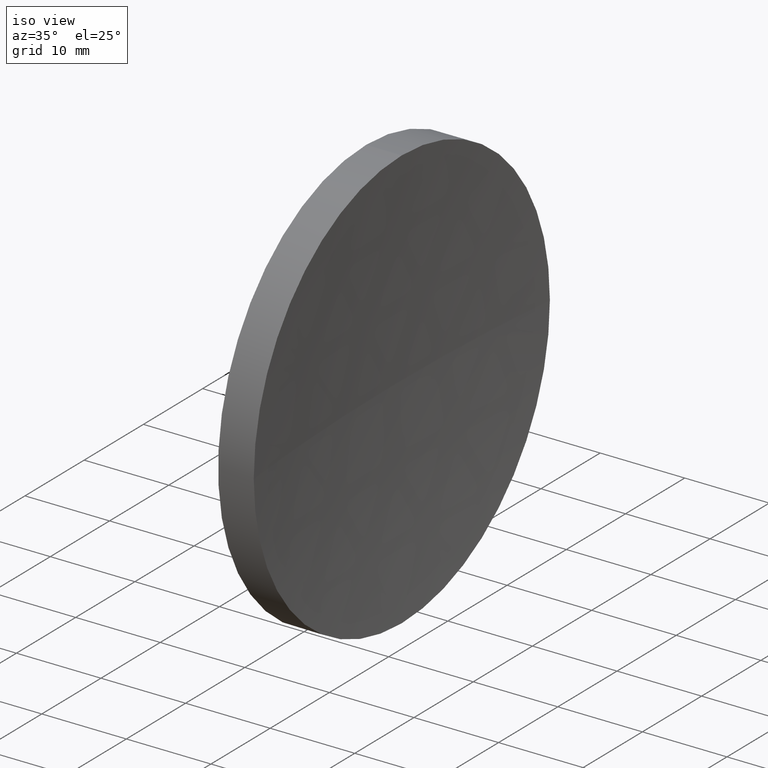
[diagram: clean part render]
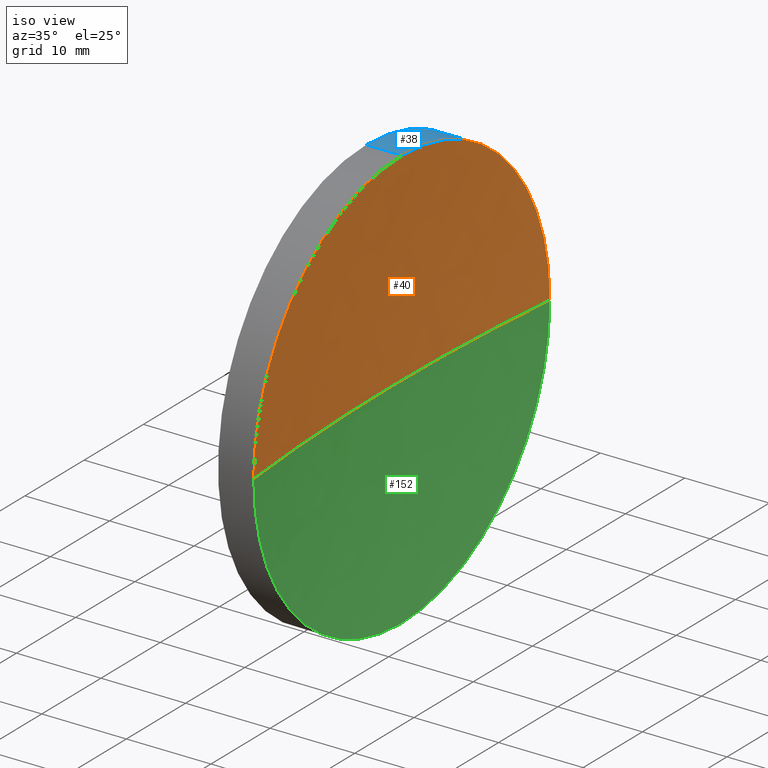
[diagram: same view with three faces highlighted in distinct colors, each labeled with its STEP entity id]
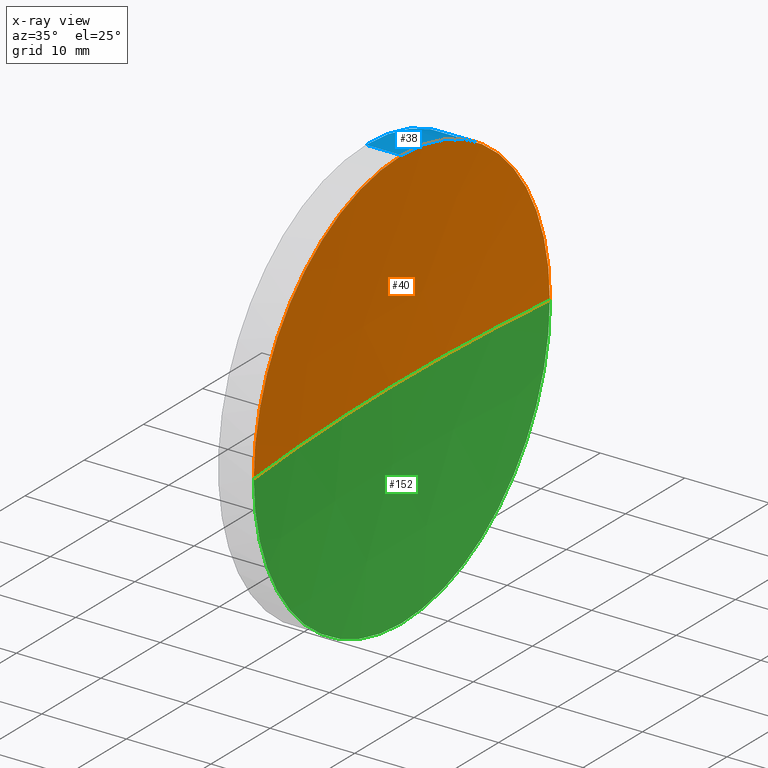
[diagram: x-ray of the same camera — body ghosted, the three highlighted faces saturated]
A machine part, iso view with three faces highlighted in distinct colors.
The next image is the same camera in x-ray (body ghosted, the three faces saturated) — at least one of them is partly hidden behind the body in this view.
Their STEP definitions:

[orange] entity #40 — the highlighted spherical surface has radius 258.18 mm.
#4 = CARTESIAN_POINT ( 'NONE',  ( 117.9526836430682700, 90.15563045701533400, 0.0000000000000000000 ) ) ;
#9 = VERTEX_POINT ( 'NONE', #4 ) ;
#12 = CIRCLE ( 'NONE', #170, 258.1800000000000600 ) ;
#19 = ORIENTED_EDGE ( 'NONE', *, *, #117, .F. ) ;
#32 = AXIS2_PLACEMENT_3D ( 'NONE', #75, #45, #72 ) ;
#40 = ADVANCED_FACE ( 'NONE', ( #106 ), #136, .F. ) ;
#43 = VERTEX_POINT ( 'NONE', #171 ) ;
#45 = DIRECTION ( 'NONE',  ( 0.0000000000000000000, 0.0000000000000000000, -1.000000000000000000 ) ) ;
#47 = DIRECTION ( 'NONE',  ( 0.0000000000000000000, 0.0000000000000000000, 1.000000000000000000 ) ) ;
#48 = DIRECTION ( 'NONE',  ( 0.0000000000000000000, 1.224646799147353200E-016, -1.000000000000000000 ) ) ;
#63 = CARTESIAN_POINT ( 'NONE',  ( 117.9526836430682700, 65.15563045701519200, 0.0000000000000000000 ) ) ;
#64 = AXIS2_PLACEMENT_3D ( 'NONE', #159, #154, #161 ) ;
#68 = EDGE_LOOP ( 'NONE', ( #71, #115, #95, #19 ) ) ;
#69 = AXIS2_PLACEMENT_3D ( 'NONE', #180, #147, #94 ) ;
#71 = ORIENTED_EDGE ( 'NONE', *, *, #166, .F. ) ;
#72 = DIRECTION ( 'NONE',  ( 0.0000000000000000000, 1.000000000000000000, 0.0000000000000000000 ) ) ;
#75 = CARTESIAN_POINT ( 'NONE',  ( 374.9194371346435400, 65.15563045701493600, 0.0000000000000000000 ) ) ;
#94 = DIRECTION ( 'NONE',  ( 1.000000000000000000, 0.0000000000000000000, 0.0000000000000000000 ) ) ;
#95 = ORIENTED_EDGE ( 'NONE', *, *, #129, .F. ) ;
#99 = VERTEX_POINT ( 'NONE', #143 ) ;
#103 = CIRCLE ( 'NONE', #64, 24.99999999999998200 ) ;
#106 = FACE_OUTER_BOUND ( 'NONE', #68, .T. ) ;
#115 = ORIENTED_EDGE ( 'NONE', *, *, #182, .T. ) ;
#117 = EDGE_CURVE ( 'NONE', #99, #9, #103, .T. ) ;
#123 = AXIS2_PLACEMENT_3D ( 'NONE', #63, #160, #47 ) ;
#126 = CIRCLE ( 'NONE', #69, 258.1800000000001200 ) ;
#129 = EDGE_CURVE ( 'NONE', #9, #43, #126, .T. ) ;
#131 = VERTEX_POINT ( 'NONE', #141 ) ;
#136 = SPHERICAL_SURFACE ( 'NONE', #32, 258.1800000000000600 ) ;
#141 = CARTESIAN_POINT ( 'NONE',  ( 117.9526836430682700, 40.15563045701479400, -3.061616997868400000E-015 ) ) ;
#143 = CARTESIAN_POINT ( 'NONE',  ( 117.9526836430682700, 65.15563045701519200, 24.99999999999998200 ) ) ;
#146 = CARTESIAN_POINT ( 'NONE',  ( 374.9194371346435400, 65.15563045701493600, 0.0000000000000000000 ) ) ;
#147 = DIRECTION ( 'NONE',  ( 0.0000000000000000000, 0.0000000000000000000, 1.000000000000000000 ) ) ;
#151 = DIRECTION ( 'NONE',  ( 0.0000000000000000000, 1.000000000000000000, 1.224646799147353200E-016 ) ) ;
#154 = DIRECTION ( 'NONE',  ( -1.000000000000000000, -0.0000000000000000000, -0.0000000000000000000 ) ) ;
#157 = CIRCLE ( 'NONE', #123, 24.99999999999998200 ) ;
#159 = CARTESIAN_POINT ( 'NONE',  ( 117.9526836430682700, 65.15563045701519200, 0.0000000000000000000 ) ) ;
#160 = DIRECTION ( 'NONE',  ( -1.000000000000000000, -0.0000000000000000000, -0.0000000000000000000 ) ) ;
#161 = DIRECTION ( 'NONE',  ( 0.0000000000000000000, 0.0000000000000000000, 1.000000000000000000 ) ) ;
#166 = EDGE_CURVE ( 'NONE', #131, #99, #157, .T. ) ;
#170 = AXIS2_PLACEMENT_3D ( 'NONE', #146, #48, #151 ) ;
#171 = CARTESIAN_POINT ( 'NONE',  ( 116.7394371346434700, 65.15563045701495100, 0.0000000000000000000 ) ) ;
#180 = CARTESIAN_POINT ( 'NONE',  ( 374.9194371346435400, 65.15563045701493600, 0.0000000000000000000 ) ) ;
#182 = EDGE_CURVE ( 'NONE', #131, #43, #12, .T. ) ;

[blue] entity #38 — the highlighted cylindrical surface (partial cylindrical patch) has radius 25 mm, axis along (-1, -0, -0).
#1 = ORIENTED_EDGE ( 'NONE', *, *, #3, .F. ) ;
#3 = EDGE_CURVE ( 'NONE', #99, #163, #181, .T. ) ;
#4 = CARTESIAN_POINT ( 'NONE',  ( 117.9526836430682700, 90.15563045701533400, 0.0000000000000000000 ) ) ;
#5 = CARTESIAN_POINT ( 'NONE',  ( 105.6218371238301200, 65.15563045701519200, -24.99999999999998600 ) ) ;
#9 = VERTEX_POINT ( 'NONE', #4 ) ;
#13 = AXIS2_PLACEMENT_3D ( 'NONE', #140, #33, #60 ) ;
#18 = CARTESIAN_POINT ( 'NONE',  ( 117.9526836430682700, 65.15563045701519200, -24.99999999999998200 ) ) ;
#21 = AXIS2_PLACEMENT_3D ( 'NONE', #184, #149, #36 ) ;
#25 = VERTEX_POINT ( 'NONE', #18 ) ;
#29 = DIRECTION ( 'NONE',  ( -1.000000000000000000, -0.0000000000000000000, -0.0000000000000000000 ) ) ;
#30 = ORIENTED_EDGE ( 'NONE', *, *, #162, .F. ) ;
#31 = DIRECTION ( 'NONE',  ( -1.000000000000000000, -0.0000000000000000000, -0.0000000000000000000 ) ) ;
#33 = DIRECTION ( 'NONE',  ( -1.000000000000000000, -0.0000000000000000000, -0.0000000000000000000 ) ) ;
#35 = DIRECTION ( 'NONE',  ( 0.0000000000000000000, 0.0000000000000000000, 1.000000000000000000 ) ) ;
#36 = DIRECTION ( 'NONE',  ( 0.0000000000000000000, 0.0000000000000000000, 1.000000000000000000 ) ) ;
#38 = ADVANCED_FACE ( 'NONE', ( #39 ), #176, .T. ) ;
#39 = FACE_OUTER_BOUND ( 'NONE', #124, .T. ) ;
#42 = CARTESIAN_POINT ( 'NONE',  ( 113.7394371346435000, 65.15563045701519200, 24.99999999999999300 ) ) ;
#51 = CIRCLE ( 'NONE', #21, 24.99999999999999300 ) ;
#56 = ORIENTED_EDGE ( 'NONE', *, *, #114, .T. ) ;
#60 = DIRECTION ( 'NONE',  ( 0.0000000000000000000, 0.0000000000000000000, 1.000000000000000000 ) ) ;
#64 = AXIS2_PLACEMENT_3D ( 'NONE', #159, #154, #161 ) ;
#65 = VECTOR ( 'NONE', #29, 1000.000000000000000 ) ;
#67 = CIRCLE ( 'NONE', #102, 24.99999999999998200 ) ;
#88 = VERTEX_POINT ( 'NONE', #142 ) ;
#99 = VERTEX_POINT ( 'NONE', #143 ) ;
#101 = CARTESIAN_POINT ( 'NONE',  ( 117.9526836430682700, 65.15563045701519200, 0.0000000000000000000 ) ) ;
#102 = AXIS2_PLACEMENT_3D ( 'NONE', #101, #31, #35 ) ;
#103 = CIRCLE ( 'NONE', #64, 24.99999999999998200 ) ;
#111 = EDGE_CURVE ( 'NONE', #25, #88, #186, .T. ) ;
#114 = EDGE_CURVE ( 'NONE', #9, #25, #67, .T. ) ;
#117 = EDGE_CURVE ( 'NONE', #99, #9, #103, .T. ) ;
#121 = VECTOR ( 'NONE', #172, 1000.000000000000000 ) ;
#124 = EDGE_LOOP ( 'NONE', ( #56, #134, #30, #1, #183 ) ) ;
#128 = CARTESIAN_POINT ( 'NONE',  ( 105.6218371238301200, 65.15563045701519200, 24.99999999999998600 ) ) ;
#134 = ORIENTED_EDGE ( 'NONE', *, *, #111, .T. ) ;
#140 = CARTESIAN_POINT ( 'NONE',  ( 105.6218371238301200, 65.15563045701519200, 0.0000000000000000000 ) ) ;
#142 = CARTESIAN_POINT ( 'NONE',  ( 113.7394371346435000, 65.15563045701519200, -24.99999999999999300 ) ) ;
#143 = CARTESIAN_POINT ( 'NONE',  ( 117.9526836430682700, 65.15563045701519200, 24.99999999999998200 ) ) ;
#149 = DIRECTION ( 'NONE',  ( -1.000000000000000000, -0.0000000000000000000, -0.0000000000000000000 ) ) ;
#154 = DIRECTION ( 'NONE',  ( -1.000000000000000000, -0.0000000000000000000, -0.0000000000000000000 ) ) ;
#159 = CARTESIAN_POINT ( 'NONE',  ( 117.9526836430682700, 65.15563045701519200, 0.0000000000000000000 ) ) ;
#161 = DIRECTION ( 'NONE',  ( 0.0000000000000000000, 0.0000000000000000000, 1.000000000000000000 ) ) ;
#162 = EDGE_CURVE ( 'NONE', #163, #88, #51, .T. ) ;
#163 = VERTEX_POINT ( 'NONE', #42 ) ;
#172 = DIRECTION ( 'NONE',  ( -1.000000000000000000, -0.0000000000000000000, -0.0000000000000000000 ) ) ;
#176 = CYLINDRICAL_SURFACE ( 'NONE', #13, 24.99999999999998600 ) ;
#181 = LINE ( 'NONE', #128, #121 ) ;
#183 = ORIENTED_EDGE ( 'NONE', *, *, #117, .T. ) ;
#184 = CARTESIAN_POINT ( 'NONE',  ( 113.7394371346435000, 65.15563045701519200, 0.0000000000000000000 ) ) ;
#186 = LINE ( 'NONE', #5, #65 ) ;

[green] entity #152 — the highlighted spherical surface has radius 258.18 mm.
#4 = CARTESIAN_POINT ( 'NONE',  ( 117.9526836430682700, 90.15563045701533400, 0.0000000000000000000 ) ) ;
#9 = VERTEX_POINT ( 'NONE', #4 ) ;
#12 = CIRCLE ( 'NONE', #170, 258.1800000000000600 ) ;
#18 = CARTESIAN_POINT ( 'NONE',  ( 117.9526836430682700, 65.15563045701519200, -24.99999999999998200 ) ) ;
#24 = DIRECTION ( 'NONE',  ( 0.0000000000000000000, 1.000000000000000000, 0.0000000000000000000 ) ) ;
#25 = VERTEX_POINT ( 'NONE', #18 ) ;
#31 = DIRECTION ( 'NONE',  ( -1.000000000000000000, -0.0000000000000000000, -0.0000000000000000000 ) ) ;
#35 = DIRECTION ( 'NONE',  ( 0.0000000000000000000, 0.0000000000000000000, 1.000000000000000000 ) ) ;
#43 = VERTEX_POINT ( 'NONE', #171 ) ;
#48 = DIRECTION ( 'NONE',  ( 0.0000000000000000000, 1.224646799147353200E-016, -1.000000000000000000 ) ) ;
#54 = ORIENTED_EDGE ( 'NONE', *, *, #129, .T. ) ;
#57 = ORIENTED_EDGE ( 'NONE', *, *, #109, .F. ) ;
#58 = CARTESIAN_POINT ( 'NONE',  ( 117.9526836430682700, 65.15563045701519200, 0.0000000000000000000 ) ) ;
#59 = EDGE_LOOP ( 'NONE', ( #169, #57, #138, #54 ) ) ;
#61 = AXIS2_PLACEMENT_3D ( 'NONE', #113, #175, #24 ) ;
#67 = CIRCLE ( 'NONE', #102, 24.99999999999998200 ) ;
#69 = AXIS2_PLACEMENT_3D ( 'NONE', #180, #147, #94 ) ;
#94 = DIRECTION ( 'NONE',  ( 1.000000000000000000, 0.0000000000000000000, 0.0000000000000000000 ) ) ;
#98 = CIRCLE ( 'NONE', #137, 24.99999999999998200 ) ;
#101 = CARTESIAN_POINT ( 'NONE',  ( 117.9526836430682700, 65.15563045701519200, 0.0000000000000000000 ) ) ;
#102 = AXIS2_PLACEMENT_3D ( 'NONE', #101, #31, #35 ) ;
#109 = EDGE_CURVE ( 'NONE', #25, #131, #98, .T. ) ;
#113 = CARTESIAN_POINT ( 'NONE',  ( 374.9194371346435400, 65.15563045701493600, 0.0000000000000000000 ) ) ;
#114 = EDGE_CURVE ( 'NONE', #9, #25, #67, .T. ) ;
#118 = FACE_OUTER_BOUND ( 'NONE', #59, .T. ) ;
#126 = CIRCLE ( 'NONE', #69, 258.1800000000001200 ) ;
#127 = DIRECTION ( 'NONE',  ( 0.0000000000000000000, 0.0000000000000000000, 1.000000000000000000 ) ) ;
#129 = EDGE_CURVE ( 'NONE', #9, #43, #126, .T. ) ;
#130 = DIRECTION ( 'NONE',  ( -1.000000000000000000, -0.0000000000000000000, -0.0000000000000000000 ) ) ;
#131 = VERTEX_POINT ( 'NONE', #141 ) ;
#137 = AXIS2_PLACEMENT_3D ( 'NONE', #58, #130, #127 ) ;
#138 = ORIENTED_EDGE ( 'NONE', *, *, #114, .F. ) ;
#141 = CARTESIAN_POINT ( 'NONE',  ( 117.9526836430682700, 40.15563045701479400, -3.061616997868400000E-015 ) ) ;
#146 = CARTESIAN_POINT ( 'NONE',  ( 374.9194371346435400, 65.15563045701493600, 0.0000000000000000000 ) ) ;
#147 = DIRECTION ( 'NONE',  ( 0.0000000000000000000, 0.0000000000000000000, 1.000000000000000000 ) ) ;
#151 = DIRECTION ( 'NONE',  ( 0.0000000000000000000, 1.000000000000000000, 1.224646799147353200E-016 ) ) ;
#152 = ADVANCED_FACE ( 'NONE', ( #118 ), #153, .F. ) ;
#153 = SPHERICAL_SURFACE ( 'NONE', #61, 258.1800000000000600 ) ;
#169 = ORIENTED_EDGE ( 'NONE', *, *, #182, .F. ) ;
#170 = AXIS2_PLACEMENT_3D ( 'NONE', #146, #48, #151 ) ;
#171 = CARTESIAN_POINT ( 'NONE',  ( 116.7394371346434700, 65.15563045701495100, 0.0000000000000000000 ) ) ;
#175 = DIRECTION ( 'NONE',  ( 0.0000000000000000000, 0.0000000000000000000, -1.000000000000000000 ) ) ;
#180 = CARTESIAN_POINT ( 'NONE',  ( 374.9194371346435400, 65.15563045701493600, 0.0000000000000000000 ) ) ;
#182 = EDGE_CURVE ( 'NONE', #131, #43, #12, .T. ) ;